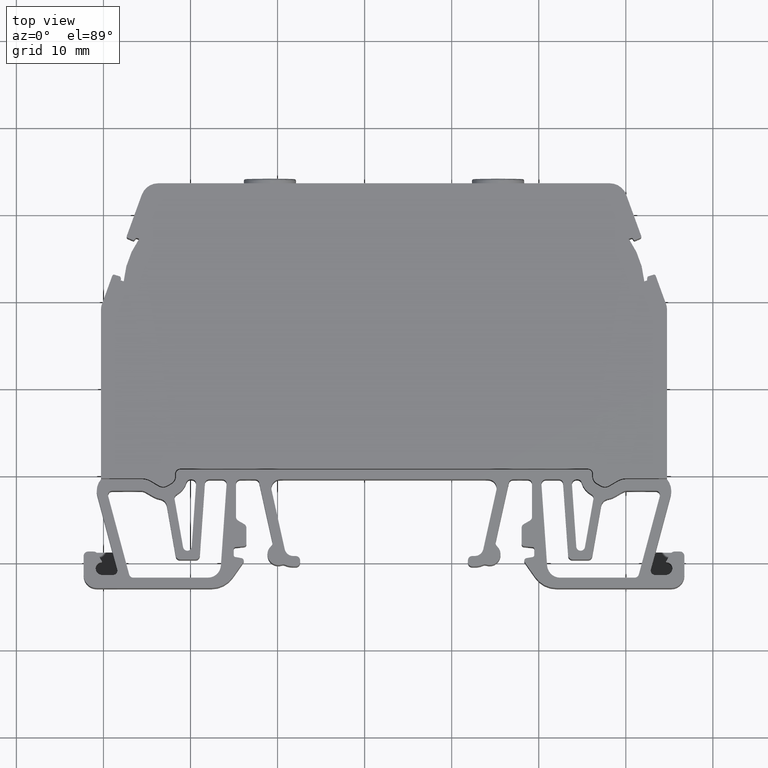
[diagram: clean part render]
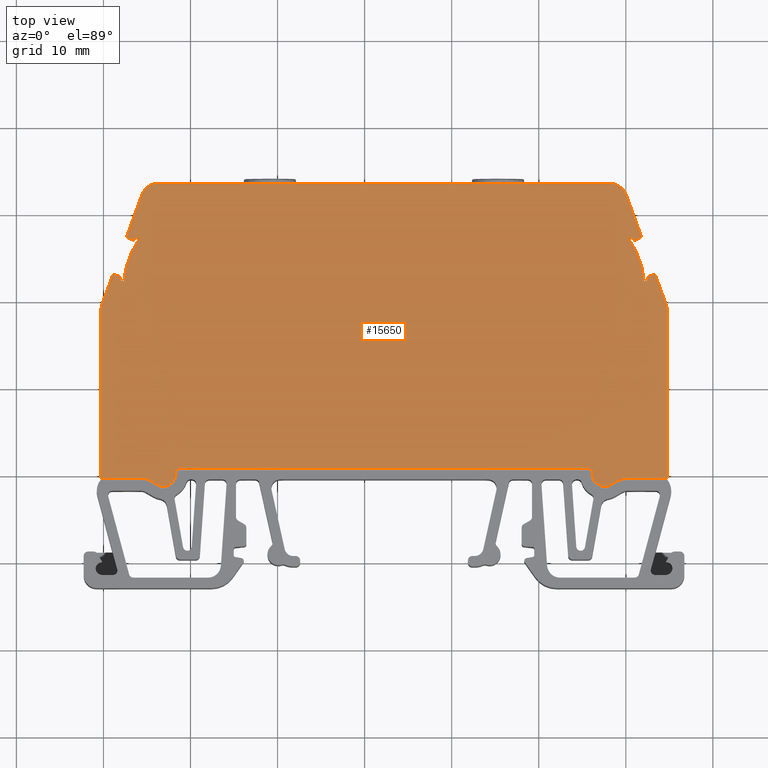
[diagram: same view with one face highlighted and labeled with its STEP entity id]
A machine part, top view. The second image highlights one B-rep face of the part: STEP entity #15650.
In plain terms, the highlighted planar face has unit normal (0, 0, 1).
Its self-contained STEP definition (entity closure, byte-faithful):
#19 = CARTESIAN_POINT ( 'NONE',  ( 503.4331740548898300, 132.9193360070189300, 35.94999999999999600 ) ) ;
#20 = CARTESIAN_POINT ( 'NONE',  ( 500.3413740903850500, 137.1677233500630000, 35.94999999999999600 ) ) ;
#27 = CARTESIAN_POINT ( 'NONE',  ( 443.8344203756755100, 137.2676784570948000, 35.94999999999999600 ) ) ;
#28 = CARTESIAN_POINT ( 'NONE',  ( 502.3985086091179300, 132.3702721546271700, 35.94999999999999600 ) ) ;
#42 = CARTESIAN_POINT ( 'NONE',  ( 500.0710872772070800, 109.6396937618602300, 35.94999999999999600 ) ) ;
#52 = CARTESIAN_POINT ( 'NONE',  ( 439.7252143684760300, 109.6396937019389200, 35.94999999999999600 ) ) ;
#70 = CARTESIAN_POINT ( 'NONE',  ( 442.8003196660605500, 137.2589568413611400, 35.94999999999999600 ) ) ;
#74 = CARTESIAN_POINT ( 'NONE',  ( 448.8254475470134800, 110.7485886008790000, 35.94999999999999600 ) ) ;
#75 = CARTESIAN_POINT ( 'NONE',  ( 500.6159984899119900, 137.2676784570948300, 35.94999999999999600 ) ) ;
#81 = CARTESIAN_POINT ( 'NONE',  ( 444.1090447752035900, 137.1677233500631400, 35.94999999999999600 ) ) ;
#86 = CARTESIAN_POINT ( 'NONE',  ( 504.7252093648909900, 129.1050819782660100, 35.94999999999999600 ) ) ;
#93 = CARTESIAN_POINT ( 'NONE',  ( 442.0519102564695100, 132.3702721546274300, 35.94999999999999600 ) ) ;
#106 = CARTESIAN_POINT ( 'NONE',  ( 504.7252093648909900, 109.6396936420171900, 35.94999999999999600 ) ) ;
#107 = CARTESIAN_POINT ( 'NONE',  ( 439.8156742988989500, 129.6181228246176400, 35.94999999999999600 ) ) ;
#108 = CARTESIAN_POINT ( 'NONE',  ( 441.2653375523544800, 133.0416697279764800, 35.94999999999999600 ) ) ;
#112 = CARTESIAN_POINT ( 'NONE',  ( 498.1671904468869900, 143.5396878145460000, 35.94999999999999600 ) ) ;
#118 = CARTESIAN_POINT ( 'NONE',  ( 442.3265345086064700, 132.2703171012420000, 35.94999999999999600 ) ) ;
#119 = CARTESIAN_POINT ( 'NONE',  ( 442.6889248981364600, 137.5121354201390600, 35.94999999999999600 ) ) ;
#121 = CARTESIAN_POINT ( 'NONE',  ( 502.1238843569819900, 132.2703171012420000, 35.94999999999999600 ) ) ;
#123 = CARTESIAN_POINT ( 'NONE',  ( 504.6347445666889900, 129.6181228246176100, 35.94999999999999600 ) ) ;
#135 = CARTESIAN_POINT ( 'NONE',  ( 439.7252095006967400, 129.1050819782660100, 35.94999999999999600 ) ) ;
#145 = CARTESIAN_POINT ( 'NONE',  ( 441.0172448106974900, 132.9193360070189800, 35.94999999999999600 ) ) ;
#165 = CARTESIAN_POINT ( 'NONE',  ( 500.0465707159510200, 142.2237417628949700, 35.94999999999999600 ) ) ;
#169 = CARTESIAN_POINT ( 'NONE',  ( 446.2832284187011300, 143.5396878145460600, 35.94999999999999600 ) ) ;
#190 = CARTESIAN_POINT ( 'NONE',  ( 501.7614939674509700, 137.5121354201390000, 35.94999999999999600 ) ) ;
#191 = CARTESIAN_POINT ( 'NONE',  ( 444.4038481496365300, 142.2237417628949700, 35.94999999999999600 ) ) ;
#777 = CARTESIAN_POINT ( 'NONE',  ( 498.0475476597341100, 108.7962708651284300, 35.94999999999999600 ) ) ;
#790 = DIRECTION ( 'NONE',  ( -0.8660242921353220600, -0.5000019254278069700, 0.0000000000000000000 ) ) ;
#798 = LINE ( 'NONE', #777, #1277 ) ;
#899 = CARTESIAN_POINT ( 'NONE',  ( 496.2249713185750000, 110.1485886008790100, 35.94999999999999600 ) ) ;
#904 = CARTESIAN_POINT ( 'NONE',  ( 498.0475476597335400, 108.7962708651281100, 35.94999999999999600 ) ) ;
#958 = CARTESIAN_POINT ( 'NONE',  ( 501.0879123199289900, 137.0260679826899900, 35.94999999999999600 ) ) ;
#962 = CARTESIAN_POINT ( 'NONE',  ( 443.6421634610584900, 137.1780275854749800, 35.94999999999999600 ) ) ;
#965 = CARTESIAN_POINT ( 'NONE',  ( 443.6296331466310200, 137.1436008295233900, 35.94999999999999600 ) ) ;
#988 = CARTESIAN_POINT ( 'NONE',  ( 500.8082554045290100, 137.1780275854750400, 35.94999999999999600 ) ) ;
#1006 = CARTESIAN_POINT ( 'NONE',  ( 502.4756495528112100, 132.5968998137400900, 35.94999999999999600 ) ) ;
#1029 = CARTESIAN_POINT ( 'NONE',  ( 441.8457076652765100, 132.8586343896417600, 35.94999999999999600 ) ) ;
#1031 = CARTESIAN_POINT ( 'NONE',  ( 502.6047112003120100, 132.8586343896420500, 35.94999999999999600 ) ) ;
#1033 = CARTESIAN_POINT ( 'NONE',  ( 444.3793315639185300, 109.6396937618606000, 35.94999999999999600 ) ) ;
#1050 = CARTESIAN_POINT ( 'NONE',  ( 441.9622593848505400, 132.5625290692439900, 35.94999999999999600 ) ) ;
#1057 = CARTESIAN_POINT ( 'NONE',  ( 499.0210836993427400, 109.3583450456087700, 35.94999999999999600 ) ) ;
#1065 = CARTESIAN_POINT ( 'NONE',  ( 495.6249713185750400, 110.7485886008790200, 35.94999999999999600 ) ) ;
#1066 = CARTESIAN_POINT ( 'NONE',  ( 443.3625065456589600, 137.0260679826899400, 35.94999999999999600 ) ) ;
#1072 = CARTESIAN_POINT ( 'NONE',  ( 503.1850813132330100, 133.0416697279760900, 35.94999999999999600 ) ) ;
#1277 = VECTOR ( 'NONE', #790, 1000.000000000000100 ) ;
#1334 = CIRCLE ( 'NONE', #1399, 0.5999999999999894300 ) ;
#1339 = CIRCLE ( 'NONE', #1361, 0.2020000000000354800 ) ;
#1361 = AXIS2_PLACEMENT_3D ( 'NONE', #9011, #8977, #8994 ) ;
#1369 = CIRCLE ( 'NONE', #1392, 0.2019999999998689500 ) ;
#1384 = VECTOR ( 'NONE', #9036, 1000.000000000000000 ) ;
#1390 = VECTOR ( 'NONE', #8976, 1000.000000000000000 ) ;
#1392 = AXIS2_PLACEMENT_3D ( 'NONE', #9136, #9124, #9106 ) ;
#1394 = CIRCLE ( 'NONE', #1439, 0.2020000000001465100 ) ;
#1399 = AXIS2_PLACEMENT_3D ( 'NONE', #9186, #9169, #9171 ) ;
#1400 = AXIS2_PLACEMENT_3D ( 'NONE', #9273, #9282, #9265 ) ;
#1401 = VECTOR ( 'NONE', #9309, 999.9999999999998900 ) ;
#1416 = CIRCLE ( 'NONE', #1400, 0.5999999999999894300 ) ;
#1417 = AXIS2_PLACEMENT_3D ( 'NONE', #9526, #9523, #9498 ) ;
#1432 = CIRCLE ( 'NONE', #1417, 2.100000000000656900 ) ;
#1439 = AXIS2_PLACEMENT_3D ( 'NONE', #9432, #9429, #9433 ) ;
#1456 = VECTOR ( 'NONE', #9329, 1000.000000000000100 ) ;
#1458 = AXIS2_PLACEMENT_3D ( 'NONE', #9703, #9734, #9702 ) ;
#1864 = AXIS2_PLACEMENT_3D ( 'NONE', #5214, #5195, #5188 ) ;
#1892 = CIRCLE ( 'NONE', #1864, 0.9000000000000674100 ) ;
#1895 = CIRCLE ( 'NONE', #1904, 0.9000000000001229200 ) ;
#1902 = VECTOR ( 'NONE', #5178, 1000.000000000000000 ) ;
#1904 = AXIS2_PLACEMENT_3D ( 'NONE', #5182, #5230, #5287 ) ;
#1981 = VECTOR ( 'NONE', #11873, 1000.000000000000100 ) ;
#1992 = CIRCLE ( 'NONE', #2045, 0.8999999035514960600 ) ;
#2038 = VECTOR ( 'NONE', #5826, 1000.000000000000100 ) ;
#2045 = AXIS2_PLACEMENT_3D ( 'NONE', #12231, #12210, #12207 ) ;
#2051 = CIRCLE ( 'NONE', #2068, 0.8999995820572204200 ) ;
#2068 = AXIS2_PLACEMENT_3D ( 'NONE', #12583, #12573, #12585 ) ;
#2140 = AXIS2_PLACEMENT_3D ( 'NONE', #12911, #12913, #12893 ) ;
#2153 = VECTOR ( 'NONE', #12725, 1000.000000000000000 ) ;
#2161 = VECTOR ( 'NONE', #12869, 1000.000000000000000 ) ;
#2168 = CIRCLE ( 'NONE', #2140, 0.2020000000002575300 ) ;
#2852 = EDGE_CURVE ( 'NONE', #6342, #6193, #11560, .T. ) ;
#2890 = EDGE_CURVE ( 'NONE', #6188, #6355, #11570, .T. ) ;
#2895 = EDGE_CURVE ( 'NONE', #4106, #6316, #11561, .T. ) ;
#2900 = EDGE_CURVE ( 'NONE', #6383, #6273, #11587, .T. ) ;
#2926 = EDGE_CURVE ( 'NONE', #6242, #6277, #14067, .T. ) ;
#2930 = EDGE_CURVE ( 'NONE', #6245, #6311, #14023, .T. ) ;
#2941 = EDGE_CURVE ( 'NONE', #6197, #6305, #11668, .T. ) ;
#2986 = EDGE_CURVE ( 'NONE', #6288, #6232, #14314, .T. ) ;
#2993 = EDGE_CURVE ( 'NONE', #6330, #6203, #14437, .T. ) ;
#3003 = EDGE_CURVE ( 'NONE', #6234, #6428, #14464, .T. ) ;
#3014 = EDGE_CURVE ( 'NONE', #6412, #6487, #11720, .T. ) ;
#3018 = EDGE_CURVE ( 'NONE', #6384, #6403, #14512, .T. ) ;
#3019 = EDGE_CURVE ( 'NONE', #6497, #6412, #14542, .T. ) ;
#3021 = EDGE_CURVE ( 'NONE', #6442, #6489, #14627, .T. ) ;
#3022 = EDGE_CURVE ( 'NONE', #6358, #6277, #11709, .T. ) ;
#3023 = EDGE_CURVE ( 'NONE', #6442, #6311, #11731, .T. ) ;
#3024 = EDGE_CURVE ( 'NONE', #6411, #6493, #14668, .T. ) ;
#3029 = EDGE_CURVE ( 'NONE', #6363, #6342, #14699, .T. ) ;
#3031 = EDGE_CURVE ( 'NONE', #6384, #6421, #11746, .T. ) ;
#3033 = EDGE_CURVE ( 'NONE', #6330, #6415, #14617, .T. ) ;
#3036 = EDGE_CURVE ( 'NONE', #6440, #6383, #15237, .T. ) ;
#3037 = EDGE_CURVE ( 'NONE', #6355, #6451, #15227, .T. ) ;
#3038 = EDGE_CURVE ( 'NONE', #6363, #6390, #11774, .T. ) ;
#3047 = EDGE_CURVE ( 'NONE', #6358, #6421, #15246, .T. ) ;
#3048 = EDGE_CURVE ( 'NONE', #6493, #6428, #11771, .T. ) ;
#3050 = EDGE_CURVE ( 'NONE', #4038, #6488, #11753, .T. ) ;
#3051 = EDGE_CURVE ( 'NONE', #6487, #6488, #15259, .T. ) ;
#3053 = EDGE_CURVE ( 'NONE', #6316, #6390, #13628, .T. ) ;
#3054 = EDGE_CURVE ( 'NONE', #6489, #6497, #11780, .T. ) ;
#3060 = EDGE_CURVE ( 'NONE', #6415, #6411, #11754, .T. ) ;
#3062 = EDGE_CURVE ( 'NONE', #6305, #6403, #13590, .T. ) ;
#3063 = EDGE_CURVE ( 'NONE', #6440, #6451, #11792, .T. ) ;
#3213 = EDGE_CURVE ( 'NONE', #4140, #4106, #11291, .T. ) ;
#3275 = EDGE_CURVE ( 'NONE', #4071, #4038, #11352, .T. ) ;
#3286 = EDGE_CURVE ( 'NONE', #4133, #4179, #11313, .T. ) ;
#3946 = EDGE_LOOP ( 'NONE', ( #7281, #7294, #7323, #7313, #7305, #7268, #7320, #7279, #7290, #7308, #7296, #7247, #7321, #7276, #7264, #7315, #7322, #7263, #7299, #7270, #7304, #7271, #7325, #7292, #7301, #7317, #7311, #7253, #7324, #7326, #7249, #7316, #7278, #7250, #7300, #7310, #7319, #7291, #7330, #7342, #7343, #7361, #7389, #7273, #7345, #7375, #7384, #7371, #7334, #7369, #7351, #7282, #7365, #7387, #7336, #7269, #7357 ) ) ;
#4010 = VERTEX_POINT ( 'NONE', #10664 ) ;
#4038 = VERTEX_POINT ( 'NONE', #10661 ) ;
#4071 = VERTEX_POINT ( 'NONE', #10776 ) ;
#4106 = VERTEX_POINT ( 'NONE', #10762 ) ;
#4133 = VERTEX_POINT ( 'NONE', #10814 ) ;
#4140 = VERTEX_POINT ( 'NONE', #10792 ) ;
#4179 = VERTEX_POINT ( 'NONE', #10898 ) ;
#4229 = VERTEX_POINT ( 'NONE', #10902 ) ;
#4264 = VERTEX_POINT ( 'NONE', #10930 ) ;
#4329 = VERTEX_POINT ( 'NONE', #11040 ) ;
#4336 = VERTEX_POINT ( 'NONE', #11023 ) ;
#4341 = VERTEX_POINT ( 'NONE', #11039 ) ;
#4377 = VERTEX_POINT ( 'NONE', #11083 ) ;
#4407 = VERTEX_POINT ( 'NONE', #11098 ) ;
#4412 = VERTEX_POINT ( 'NONE', #11047 ) ;
#4413 = VERTEX_POINT ( 'NONE', #11090 ) ;
#4461 = VERTEX_POINT ( 'NONE', #899 ) ;
#4496 = VERTEX_POINT ( 'NONE', #904 ) ;
#4519 = VERTEX_POINT ( 'NONE', #1006 ) ;
#4521 = VERTEX_POINT ( 'NONE', #958 ) ;
#5178 = DIRECTION ( 'NONE',  ( -0.8660257572831008300, 0.4999993877218569800, 0.0000000000000000000 ) ) ;
#5180 = CARTESIAN_POINT ( 'NONE',  ( 496.6749713185751000, 109.0691067570462000, 35.94999999999999600 ) ) ;
#5182 = CARTESIAN_POINT ( 'NONE',  ( 447.3254475470129700, 109.8485296204524000, 35.94999999999999600 ) ) ;
#5188 = DIRECTION ( 'NONE',  ( 1.000000000000000000, 0.0000000000000000000, 0.0000000000000000000 ) ) ;
#5195 = DIRECTION ( 'NONE',  ( -0.0000000000000000000, -0.0000000000000000000, -1.000000000000000000 ) ) ;
#5206 = LINE ( 'NONE', #5180, #1902 ) ;
#5214 = CARTESIAN_POINT ( 'NONE',  ( 497.1249713185750400, 109.8485296204524000, 35.94999999999999600 ) ) ;
#5230 = DIRECTION ( 'NONE',  ( -0.0000000000000000000, -0.0000000000000000000, -1.000000000000000000 ) ) ;
#5287 = DIRECTION ( 'NONE',  ( 1.000000000000000000, 0.0000000000000000000, 0.0000000000000000000 ) ) ;
#5774 = VECTOR ( 'NONE', #5905, 1000.000000000000000 ) ;
#5818 = CARTESIAN_POINT ( 'NONE',  ( 502.4756495528109800, 132.5968998137400100, 35.94999999999999600 ) ) ;
#5826 = DIRECTION ( 'NONE',  ( -0.3420201433202184600, 0.9396926207878920600, 0.0000000000000000000 ) ) ;
#5841 = LINE ( 'NONE', #5818, #2038 ) ;
#5905 = DIRECTION ( 'NONE',  ( -0.8660241491388746000, 0.5000021731035658700, 0.0000000000000000000 ) ) ;
#5914 = LINE ( 'NONE', #5923, #5774 ) ;
#5923 = CARTESIAN_POINT ( 'NONE',  ( 445.4293347377645200, 109.3583452929940000, 35.94999999999999600 ) ) ;
#6188 = VERTEX_POINT ( 'NONE', #962 ) ;
#6191 = VERTEX_POINT ( 'NONE', #965 ) ;
#6193 = VERTEX_POINT ( 'NONE', #988 ) ;
#6197 = VERTEX_POINT ( 'NONE', #1057 ) ;
#6203 = VERTEX_POINT ( 'NONE', #1033 ) ;
#6232 = VERTEX_POINT ( 'NONE', #1065 ) ;
#6234 = VERTEX_POINT ( 'NONE', #1029 ) ;
#6242 = VERTEX_POINT ( 'NONE', #1031 ) ;
#6245 = VERTEX_POINT ( 'NONE', #1066 ) ;
#6273 = VERTEX_POINT ( 'NONE', #1050 ) ;
#6277 = VERTEX_POINT ( 'NONE', #1072 ) ;
#6288 = VERTEX_POINT ( 'NONE', #74 ) ;
#6305 = VERTEX_POINT ( 'NONE', #42 ) ;
#6311 = VERTEX_POINT ( 'NONE', #70 ) ;
#6316 = VERTEX_POINT ( 'NONE', #28 ) ;
#6330 = VERTEX_POINT ( 'NONE', #52 ) ;
#6342 = VERTEX_POINT ( 'NONE', #75 ) ;
#6355 = VERTEX_POINT ( 'NONE', #27 ) ;
#6358 = VERTEX_POINT ( 'NONE', #19 ) ;
#6363 = VERTEX_POINT ( 'NONE', #20 ) ;
#6383 = VERTEX_POINT ( 'NONE', #93 ) ;
#6384 = VERTEX_POINT ( 'NONE', #86 ) ;
#6390 = VERTEX_POINT ( 'NONE', #121 ) ;
#6403 = VERTEX_POINT ( 'NONE', #106 ) ;
#6411 = VERTEX_POINT ( 'NONE', #107 ) ;
#6412 = VERTEX_POINT ( 'NONE', #112 ) ;
#6415 = VERTEX_POINT ( 'NONE', #135 ) ;
#6421 = VERTEX_POINT ( 'NONE', #123 ) ;
#6428 = VERTEX_POINT ( 'NONE', #108 ) ;
#6440 = VERTEX_POINT ( 'NONE', #118 ) ;
#6442 = VERTEX_POINT ( 'NONE', #119 ) ;
#6451 = VERTEX_POINT ( 'NONE', #81 ) ;
#6487 = VERTEX_POINT ( 'NONE', #165 ) ;
#6488 = VERTEX_POINT ( 'NONE', #190 ) ;
#6489 = VERTEX_POINT ( 'NONE', #191 ) ;
#6493 = VERTEX_POINT ( 'NONE', #145 ) ;
#6497 = VERTEX_POINT ( 'NONE', #169 ) ;
#7247 = ORIENTED_EDGE ( 'NONE', *, *, #3213, .T. ) ;
#7249 = ORIENTED_EDGE ( 'NONE', *, *, #15558, .F. ) ;
#7250 = ORIENTED_EDGE ( 'NONE', *, *, #3063, .F. ) ;
#7253 = ORIENTED_EDGE ( 'NONE', *, *, #3023, .T. ) ;
#7263 = ORIENTED_EDGE ( 'NONE', *, *, #15493, .F. ) ;
#7264 = ORIENTED_EDGE ( 'NONE', *, *, #3038, .F. ) ;
#7268 = ORIENTED_EDGE ( 'NONE', *, *, #3031, .T. ) ;
#7269 = ORIENTED_EDGE ( 'NONE', *, *, #16090, .F. ) ;
#7270 = ORIENTED_EDGE ( 'NONE', *, *, #15501, .F. ) ;
#7271 = ORIENTED_EDGE ( 'NONE', *, *, #3050, .T. ) ;
#7273 = ORIENTED_EDGE ( 'NONE', *, *, #3033, .F. ) ;
#7276 = ORIENTED_EDGE ( 'NONE', *, *, #3053, .T. ) ;
#7278 = ORIENTED_EDGE ( 'NONE', *, *, #3037, .T. ) ;
#7279 = ORIENTED_EDGE ( 'NONE', *, *, #3022, .T. ) ;
#7281 = ORIENTED_EDGE ( 'NONE', *, *, #16287, .F. ) ;
#7282 = ORIENTED_EDGE ( 'NONE', *, *, #15542, .T. ) ;
#7290 = ORIENTED_EDGE ( 'NONE', *, *, #2926, .F. ) ;
#7291 = ORIENTED_EDGE ( 'NONE', *, *, #3286, .F. ) ;
#7292 = ORIENTED_EDGE ( 'NONE', *, *, #3014, .F. ) ;
#7294 = ORIENTED_EDGE ( 'NONE', *, *, #15426, .F. ) ;
#7296 = ORIENTED_EDGE ( 'NONE', *, *, #16392, .F. ) ;
#7299 = ORIENTED_EDGE ( 'NONE', *, *, #16359, .F. ) ;
#7300 = ORIENTED_EDGE ( 'NONE', *, *, #3036, .T. ) ;
#7301 = ORIENTED_EDGE ( 'NONE', *, *, #3019, .F. ) ;
#7304 = ORIENTED_EDGE ( 'NONE', *, *, #3275, .T. ) ;
#7305 = ORIENTED_EDGE ( 'NONE', *, *, #3018, .F. ) ;
#7308 = ORIENTED_EDGE ( 'NONE', *, *, #15483, .F. ) ;
#7310 = ORIENTED_EDGE ( 'NONE', *, *, #2900, .T. ) ;
#7311 = ORIENTED_EDGE ( 'NONE', *, *, #3021, .F. ) ;
#7313 = ORIENTED_EDGE ( 'NONE', *, *, #3062, .T. ) ;
#7315 = ORIENTED_EDGE ( 'NONE', *, *, #3029, .T. ) ;
#7316 = ORIENTED_EDGE ( 'NONE', *, *, #2890, .T. ) ;
#7317 = ORIENTED_EDGE ( 'NONE', *, *, #3054, .F. ) ;
#7319 = ORIENTED_EDGE ( 'NONE', *, *, #15565, .F. ) ;
#7320 = ORIENTED_EDGE ( 'NONE', *, *, #3047, .F. ) ;
#7321 = ORIENTED_EDGE ( 'NONE', *, *, #2895, .T. ) ;
#7322 = ORIENTED_EDGE ( 'NONE', *, *, #2852, .T. ) ;
#7323 = ORIENTED_EDGE ( 'NONE', *, *, #2941, .T. ) ;
#7324 = ORIENTED_EDGE ( 'NONE', *, *, #2930, .F. ) ;
#7325 = ORIENTED_EDGE ( 'NONE', *, *, #3051, .F. ) ;
#7326 = ORIENTED_EDGE ( 'NONE', *, *, #15597, .F. ) ;
#7330 = ORIENTED_EDGE ( 'NONE', *, *, #15533, .F. ) ;
#7334 = ORIENTED_EDGE ( 'NONE', *, *, #16113, .F. ) ;
#7336 = ORIENTED_EDGE ( 'NONE', *, *, #16342, .F. ) ;
#7342 = ORIENTED_EDGE ( 'NONE', *, *, #3003, .T. ) ;
#7343 = ORIENTED_EDGE ( 'NONE', *, *, #3048, .F. ) ;
#7345 = ORIENTED_EDGE ( 'NONE', *, *, #2993, .T. ) ;
#7351 = ORIENTED_EDGE ( 'NONE', *, *, #16328, .F. ) ;
#7357 = ORIENTED_EDGE ( 'NONE', *, *, #16099, .F. ) ;
#7361 = ORIENTED_EDGE ( 'NONE', *, *, #3024, .F. ) ;
#7365 = ORIENTED_EDGE ( 'NONE', *, *, #2986, .T. ) ;
#7369 = ORIENTED_EDGE ( 'NONE', *, *, #16101, .F. ) ;
#7371 = ORIENTED_EDGE ( 'NONE', *, *, #16198, .F. ) ;
#7375 = ORIENTED_EDGE ( 'NONE', *, *, #15601, .T. ) ;
#7384 = ORIENTED_EDGE ( 'NONE', *, *, #16411, .F. ) ;
#7387 = ORIENTED_EDGE ( 'NONE', *, *, #15555, .T. ) ;
#7389 = ORIENTED_EDGE ( 'NONE', *, *, #3060, .F. ) ;
#8969 = LINE ( 'NONE', #8972, #1390 ) ;
#8972 = CARTESIAN_POINT ( 'NONE',  ( 500.8082554045290100, 137.1780275854749800, 35.94999999999999600 ) ) ;
#8976 = DIRECTION ( 'NONE',  ( -0.3420201433108998600, 0.9396926207912837900, 0.0000000000000000000 ) ) ;
#8977 = DIRECTION ( 'NONE',  ( -0.0000000000000000000, -0.0000000000000000000, -1.000000000000000000 ) ) ;
#8994 = DIRECTION ( 'NONE',  ( 1.000000000000000000, 1.374038396813071300E-013, 0.0000000000000000000 ) ) ;
#9011 = CARTESIAN_POINT ( 'NONE',  ( 502.6654674622100700, 132.6659878826916100, 35.94999999999999600 ) ) ;
#9024 = CARTESIAN_POINT ( 'NONE',  ( 501.0879123199289900, 137.0260679826899900, 35.94999999999999600 ) ) ;
#9036 = DIRECTION ( 'NONE',  ( -0.9238659197143411800, -0.3827162949109620400, 0.0000000000000000000 ) ) ;
#9049 = LINE ( 'NONE', #9024, #1384 ) ;
#9106 = DIRECTION ( 'NONE',  ( 1.000000000000000000, -6.870191984071019500E-013, 0.0000000000000000000 ) ) ;
#9124 = DIRECTION ( 'NONE',  ( -0.0000000000000000000, -0.0000000000000000000, -1.000000000000000000 ) ) ;
#9136 = CARTESIAN_POINT ( 'NONE',  ( 441.7849514033779900, 132.6659878826916100, 35.94999999999999600 ) ) ;
#9169 = DIRECTION ( 'NONE',  ( -0.0000000000000000000, -0.0000000000000000000, -1.000000000000000000 ) ) ;
#9171 = DIRECTION ( 'NONE',  ( 1.000000000000000000, 0.0000000000000000000, 0.0000000000000000000 ) ) ;
#9186 = CARTESIAN_POINT ( 'NONE',  ( 448.8254475470129700, 110.1485886008790100, 35.94999999999999600 ) ) ;
#9265 = DIRECTION ( 'NONE',  ( 1.000000000000000000, 0.0000000000000000000, 0.0000000000000000000 ) ) ;
#9273 = CARTESIAN_POINT ( 'NONE',  ( 495.6249713185750400, 110.1485886008790100, 35.94999999999999600 ) ) ;
#9278 = LINE ( 'NONE', #9281, #1401 ) ;
#9281 = CARTESIAN_POINT ( 'NONE',  ( 443.6296331466310200, 137.1436008295233900, 35.94999999999999600 ) ) ;
#9282 = DIRECTION ( 'NONE',  ( -0.0000000000000000000, -0.0000000000000000000, -1.000000000000000000 ) ) ;
#9301 = LINE ( 'NONE', #9321, #1456 ) ;
#9309 = DIRECTION ( 'NONE',  ( -0.3420201433023855600, -0.9396926207943828700, 0.0000000000000000000 ) ) ;
#9321 = CARTESIAN_POINT ( 'NONE',  ( 441.9622593848504800, 132.5625290692440200, 35.94999999999999600 ) ) ;
#9329 = DIRECTION ( 'NONE',  ( -0.3420201433215586100, -0.9396926207874043400, 0.0000000000000000000 ) ) ;
#9429 = DIRECTION ( 'NONE',  ( -0.0000000000000000000, -0.0000000000000000000, -1.000000000000000000 ) ) ;
#9432 = CARTESIAN_POINT ( 'NONE',  ( 443.4398152372310200, 137.2126888984726100, 35.94999999999999600 ) ) ;
#9433 = DIRECTION ( 'NONE',  ( 1.000000000000000000, 0.0000000000000000000, 0.0000000000000000000 ) ) ;
#9498 = DIRECTION ( 'NONE',  ( 1.000000000000000000, 0.0000000000000000000, 0.0000000000000000000 ) ) ;
#9523 = DIRECTION ( 'NONE',  ( -0.0000000000000000000, -0.0000000000000000000, -1.000000000000000000 ) ) ;
#9526 = CARTESIAN_POINT ( 'NONE',  ( 444.3793315909559900, 107.5396937618599900, 35.94999999999999600 ) ) ;
#9689 = PLANE ( 'NONE',  #1458 ) ;
#9702 = DIRECTION ( 'NONE',  ( 1.000000000000000000, 0.0000000000000000000, -0.0000000000000000000 ) ) ;
#9703 = CARTESIAN_POINT ( 'NONE',  ( 441.2252095006970200, 129.1050823633559900, 35.95000000000000300 ) ) ;
#9717 = FACE_OUTER_BOUND ( 'NONE', #3946, .T. ) ;
#9734 = DIRECTION ( 'NONE',  ( 0.0000000000000000000, 0.0000000000000000000, 1.000000000000000000 ) ) ;
#10661 = CARTESIAN_POINT ( 'NONE',  ( 501.7735559405449500, 137.4437300253040600, 35.94999999999999600 ) ) ;
#10664 = CARTESIAN_POINT ( 'NONE',  ( 445.4293347377644600, 109.3583452929937200, 35.94999999999999600 ) ) ;
#10762 = CARTESIAN_POINT ( 'NONE',  ( 502.4972055876190200, 132.5112260477452000, 35.94999999999999600 ) ) ;
#10776 = CARTESIAN_POINT ( 'NONE',  ( 501.6500991995269500, 137.2589568413611100, 35.94999999999999600 ) ) ;
#10792 = CARTESIAN_POINT ( 'NONE',  ( 502.4881594807369000, 132.5625290692440200, 35.94999999999999600 ) ) ;
#10814 = CARTESIAN_POINT ( 'NONE',  ( 441.9869514033778700, 132.6659878826916100, 35.94999999999999600 ) ) ;
#10898 = CARTESIAN_POINT ( 'NONE',  ( 441.9747693127764600, 132.5968998137400400, 35.94999999999999600 ) ) ;
#10902 = CARTESIAN_POINT ( 'NONE',  ( 447.3028760646330400, 108.7962675958520300, 35.94999999999999600 ) ) ;
#10930 = CARTESIAN_POINT ( 'NONE',  ( 496.6749713185751000, 109.0691067570462600, 35.94999999999999600 ) ) ;
#11023 = CARTESIAN_POINT ( 'NONE',  ( 446.4028713894810500, 108.7962703878793600, 35.94999999999999600 ) ) ;
#11039 = CARTESIAN_POINT ( 'NONE',  ( 447.7754475470129600, 109.0691067570462600, 35.94999999999999600 ) ) ;
#11040 = CARTESIAN_POINT ( 'NONE',  ( 497.1475429617026400, 108.7962678742739200, 35.94999999999999600 ) ) ;
#11047 = CARTESIAN_POINT ( 'NONE',  ( 500.8207857189570400, 137.1436008295235900, 35.94999999999999600 ) ) ;
#11083 = CARTESIAN_POINT ( 'NONE',  ( 448.2254475470130000, 109.8485296204524000, 35.94999999999999600 ) ) ;
#11090 = CARTESIAN_POINT ( 'NONE',  ( 448.2254475470130000, 110.1485886008789500, 35.94999999999999600 ) ) ;
#11098 = CARTESIAN_POINT ( 'NONE',  ( 496.2249713185750000, 109.8485296204524000, 35.94999999999999600 ) ) ;
#11291 = CIRCLE ( 'NONE', #11292, 0.1500000000000945000 ) ;
#11292 = AXIS2_PLACEMENT_3D ( 'NONE', #14217, #14186, #14183 ) ;
#11313 = CIRCLE ( 'NONE', #11346, 0.2019999999998689500 ) ;
#11315 = AXIS2_PLACEMENT_3D ( 'NONE', #14420, #14388, #14372 ) ;
#11346 = AXIS2_PLACEMENT_3D ( 'NONE', #14506, #14494, #14439 ) ;
#11352 = CIRCLE ( 'NONE', #11315, 0.1999999999999779700 ) ;
#11560 = CIRCLE ( 'NONE', #11613, 0.1499999999997614400 ) ;
#11561 = CIRCLE ( 'NONE', #11592, 0.1500000000000945000 ) ;
#11570 = CIRCLE ( 'NONE', #11573, 0.1499999999997614400 ) ;
#11573 = AXIS2_PLACEMENT_3D ( 'NONE', #13913, #13909, #13975 ) ;
#11587 = CIRCLE ( 'NONE', #11589, 0.1499999999999834800 ) ;
#11589 = AXIS2_PLACEMENT_3D ( 'NONE', #13977, #13968, #13895 ) ;
#11592 = AXIS2_PLACEMENT_3D ( 'NONE', #13924, #13962, #13936 ) ;
#11613 = AXIS2_PLACEMENT_3D ( 'NONE', #13869, #13841, #13826 ) ;
#11634 = VECTOR ( 'NONE', #14021, 1000.000000000000100 ) ;
#11644 = AXIS2_PLACEMENT_3D ( 'NONE', #14078, #14132, #14113 ) ;
#11648 = VECTOR ( 'NONE', #13979, 1000.000000000000100 ) ;
#11668 = CIRCLE ( 'NONE', #11644, 2.100000000000323800 ) ;
#11686 = VECTOR ( 'NONE', #14366, 1000.000000000000000 ) ;
#11691 = AXIS2_PLACEMENT_3D ( 'NONE', #14642, #14631, #14619 ) ;
#11692 = AXIS2_PLACEMENT_3D ( 'NONE', #14657, #14638, #14674 ) ;
#11696 = VECTOR ( 'NONE', #14579, 1000.000000000000000 ) ;
#11698 = VECTOR ( 'NONE', #14687, 999.9999999999998900 ) ;
#11699 = VECTOR ( 'NONE', #14487, 1000.000000000000100 ) ;
#11702 = AXIS2_PLACEMENT_3D ( 'NONE', #14573, #14595, #14539 ) ;
#11709 = CIRCLE ( 'NONE', #11691, 0.1999999999997559300 ) ;
#11715 = VECTOR ( 'NONE', #14449, 1000.000000000000100 ) ;
#11720 = CIRCLE ( 'NONE', #11702, 1.999999999999724200 ) ;
#11721 = VECTOR ( 'NONE', #14566, 1000.000000000000000 ) ;
#11731 = CIRCLE ( 'NONE', #11692, 0.2000000000001445100 ) ;
#11737 = VECTOR ( 'NONE', #14635, 1000.000000000000100 ) ;
#11744 = VECTOR ( 'NONE', #14682, 1000.000000000000000 ) ;
#11745 = VECTOR ( 'NONE', #14648, 1000.000000000000000 ) ;
#11746 = CIRCLE ( 'NONE', #11748, 1.499999999999945800 ) ;
#11748 = AXIS2_PLACEMENT_3D ( 'NONE', #14599, #14603, #14670 ) ;
#11751 = AXIS2_PLACEMENT_3D ( 'NONE', #13607, #13615, #13553 ) ;
#11753 = CIRCLE ( 'NONE', #11779, 0.1999999999999779700 ) ;
#11754 = CIRCLE ( 'NONE', #11785, 1.499999999999890300 ) ;
#11756 = VECTOR ( 'NONE', #15221, 1000.000000000000000 ) ;
#11757 = AXIS2_PLACEMENT_3D ( 'NONE', #15222, #15220, #15223 ) ;
#11760 = VECTOR ( 'NONE', #13616, 1000.000000000000000 ) ;
#11761 = AXIS2_PLACEMENT_3D ( 'NONE', #13610, #13585, #13574 ) ;
#11763 = VECTOR ( 'NONE', #15236, 1000.000000000000100 ) ;
#11771 = CIRCLE ( 'NONE', #11751, 0.1999999999999779700 ) ;
#11774 = CIRCLE ( 'NONE', #11757, 10.00000000000045300 ) ;
#11776 = VECTOR ( 'NONE', #15251, 999.9999999999998900 ) ;
#11777 = VECTOR ( 'NONE', #13634, 1000.000000000000100 ) ;
#11779 = AXIS2_PLACEMENT_3D ( 'NONE', #13624, #13602, #13631 ) ;
#11780 = CIRCLE ( 'NONE', #11761, 2.000000000000057300 ) ;
#11785 = AXIS2_PLACEMENT_3D ( 'NONE', #13559, #13566, #13570 ) ;
#11792 = CIRCLE ( 'NONE', #11798, 10.00000000000000900 ) ;
#11797 = VECTOR ( 'NONE', #13620, 1000.000000000000100 ) ;
#11798 = AXIS2_PLACEMENT_3D ( 'NONE', #13685, #13639, #13682 ) ;
#11873 = DIRECTION ( 'NONE',  ( -0.8660254627010567400, -0.4999998979534099300, 0.0000000000000000000 ) ) ;
#11875 = CARTESIAN_POINT ( 'NONE',  ( 447.3028760807075100, 108.7962675680096000, 35.94999999999999600 ) ) ;
#11894 = LINE ( 'NONE', #11875, #1981 ) ;
#12207 = DIRECTION ( 'NONE',  ( 1.000000000000000000, 1.541976588336423000E-014, 0.0000000000000000000 ) ) ;
#12210 = DIRECTION ( 'NONE',  ( -0.0000000000000000000, -0.0000000000000000000, -1.000000000000000000 ) ) ;
#12231 = CARTESIAN_POINT ( 'NONE',  ( 446.8528761128570200, 109.5756903757310000, 35.94999999999999600 ) ) ;
#12573 = DIRECTION ( 'NONE',  ( -0.0000000000000000000, -0.0000000000000000000, -1.000000000000000000 ) ) ;
#12583 = CARTESIAN_POINT ( 'NONE',  ( 497.5975427527309900, 109.5756903757310000, 35.94999999999999600 ) ) ;
#12585 = DIRECTION ( 'NONE',  ( 1.000000000000000000, -4.625931417465524400E-014, 0.0000000000000000000 ) ) ;
#12718 = CARTESIAN_POINT ( 'NONE',  ( 448.2254475470130000, 109.8485296204524000, 35.94999999999999600 ) ) ;
#12725 = DIRECTION ( 'NONE',  ( 1.850007993506319900E-013, -1.000000000000000000, 0.0000000000000000000 ) ) ;
#12738 = LINE ( 'NONE', #12718, #2153 ) ;
#12852 = LINE ( 'NONE', #12860, #2161 ) ;
#12860 = CARTESIAN_POINT ( 'NONE',  ( 496.2249713185750000, 110.1485886008790100, 35.94999999999999600 ) ) ;
#12869 = DIRECTION ( 'NONE',  ( 0.0000000000000000000, 1.000000000000000000, 0.0000000000000000000 ) ) ;
#12893 = DIRECTION ( 'NONE',  ( 1.000000000000000000, 1.374038396811560700E-013, 0.0000000000000000000 ) ) ;
#12911 = CARTESIAN_POINT ( 'NONE',  ( 501.0106036283570500, 137.2126888984726100, 35.94999999999999600 ) ) ;
#12913 = DIRECTION ( 'NONE',  ( -0.0000000000000000000, -0.0000000000000000000, -1.000000000000000000 ) ) ;
#13549 = CARTESIAN_POINT ( 'NONE',  ( 441.2252089994660200, 109.6396952771334100, 35.95000000000000300 ) ) ;
#13553 = DIRECTION ( 'NONE',  ( 1.000000000000000000, -1.387778780781598400E-013, 0.0000000000000000000 ) ) ;
#13559 = CARTESIAN_POINT ( 'NONE',  ( 441.2252095006970200, 129.1050823633559900, 35.94999999999999600 ) ) ;
#13566 = DIRECTION ( 'NONE',  ( -0.0000000000000000000, -0.0000000000000000000, -1.000000000000000000 ) ) ;
#13570 = DIRECTION ( 'NONE',  ( 1.000000000000000000, 1.110223024625237700E-013, 0.0000000000000000000 ) ) ;
#13574 = DIRECTION ( 'NONE',  ( 1.000000000000000000, 0.0000000000000000000, 0.0000000000000000000 ) ) ;
#13585 = DIRECTION ( 'NONE',  ( -0.0000000000000000000, -0.0000000000000000000, -1.000000000000000000 ) ) ;
#13590 = LINE ( 'NONE', #13549, #11797 ) ;
#13602 = DIRECTION ( 'NONE',  ( 0.0000000000000000000, 0.0000000000000000000, 1.000000000000000000 ) ) ;
#13607 = CARTESIAN_POINT ( 'NONE',  ( 441.2051828376039600, 132.8509306121840700, 35.94999999999999600 ) ) ;
#13610 = CARTESIAN_POINT ( 'NONE',  ( 446.2832284187011300, 141.5396878145460000, 35.94999999999999600 ) ) ;
#13615 = DIRECTION ( 'NONE',  ( -0.0000000000000000000, -0.0000000000000000000, -1.000000000000000000 ) ) ;
#13616 = DIRECTION ( 'NONE',  ( 0.3420269741745725100, -0.9396901345321160300, 0.0000000000000000000 ) ) ;
#13620 = DIRECTION ( 'NONE',  ( 0.9999999999999996700, -2.574986095760674600E-008, 0.0000000000000000000 ) ) ;
#13624 = CARTESIAN_POINT ( 'NONE',  ( 501.5735559405449600, 137.4437300253040600, 35.94999999999999600 ) ) ;
#13628 = LINE ( 'NONE', #13629, #11777 ) ;
#13629 = CARTESIAN_POINT ( 'NONE',  ( 447.3317143597481600, 112.3275981513560400, 35.95000000000000300 ) ) ;
#13631 = DIRECTION ( 'NONE',  ( 1.000000000000000000, 0.0000000000000000000, 0.0000000000000000000 ) ) ;
#13634 = DIRECTION ( 'NONE',  ( -0.9396926207856930400, -0.3420201433262601800, 0.0000000000000000000 ) ) ;
#13639 = DIRECTION ( 'NONE',  ( -0.0000000000000000000, -0.0000000000000000000, -1.000000000000000000 ) ) ;
#13682 = DIRECTION ( 'NONE',  ( 1.000000000000000000, 0.0000000000000000000, 0.0000000000000000000 ) ) ;
#13685 = CARTESIAN_POINT ( 'NONE',  ( 452.2900591060430300, 131.4169838742566000, 35.94999999999999600 ) ) ;
#13826 = DIRECTION ( 'NONE',  ( 1.000000000000000000, -5.551115123134610900E-013, 0.0000000000000000000 ) ) ;
#13841 = DIRECTION ( 'NONE',  ( -0.0000000000000000000, -0.0000000000000000000, -1.000000000000000000 ) ) ;
#13869 = CARTESIAN_POINT ( 'NONE',  ( 500.6673015114110400, 137.1267245639772100, 35.94999999999999600 ) ) ;
#13895 = DIRECTION ( 'NONE',  ( 1.000000000000000000, -3.700743415417596100E-013, 0.0000000000000000000 ) ) ;
#13909 = DIRECTION ( 'NONE',  ( -0.0000000000000000000, -0.0000000000000000000, -1.000000000000000000 ) ) ;
#13913 = CARTESIAN_POINT ( 'NONE',  ( 443.7831173541765100, 137.1267245639772100, 35.94999999999999600 ) ) ;
#13924 = CARTESIAN_POINT ( 'NONE',  ( 502.3472055876189300, 132.5112260477452000, 35.94999999999999600 ) ) ;
#13936 = DIRECTION ( 'NONE',  ( 1.000000000000000000, 0.0000000000000000000, 0.0000000000000000000 ) ) ;
#13962 = DIRECTION ( 'NONE',  ( -0.0000000000000000000, -0.0000000000000000000, -1.000000000000000000 ) ) ;
#13968 = DIRECTION ( 'NONE',  ( -0.0000000000000000000, -0.0000000000000000000, -1.000000000000000000 ) ) ;
#13975 = DIRECTION ( 'NONE',  ( 1.000000000000000000, -1.850371707711537200E-013, 0.0000000000000000000 ) ) ;
#13977 = CARTESIAN_POINT ( 'NONE',  ( 442.1032132779684500, 132.5112260477452000, 35.94999999999999600 ) ) ;
#13979 = DIRECTION ( 'NONE',  ( -0.9238659197144130100, 0.3827162949107885100, 0.0000000000000000000 ) ) ;
#14021 = DIRECTION ( 'NONE',  ( 0.9536955789618815100, 0.3007735737536818000, 0.0000000000000000000 ) ) ;
#14023 = LINE ( 'NONE', #14039, #11648 ) ;
#14039 = CARTESIAN_POINT ( 'NONE',  ( 442.8003196660604900, 137.2589568413610000, 35.94999999999999600 ) ) ;
#14056 = CARTESIAN_POINT ( 'NONE',  ( 503.1850813132330100, 133.0416697279762000, 35.94999999999999600 ) ) ;
#14067 = LINE ( 'NONE', #14056, #11634 ) ;
#14078 = CARTESIAN_POINT ( 'NONE',  ( 500.0710872746320200, 107.5396937618599900, 35.94999999999999600 ) ) ;
#14113 = DIRECTION ( 'NONE',  ( 1.000000000000000000, 0.0000000000000000000, 0.0000000000000000000 ) ) ;
#14132 = DIRECTION ( 'NONE',  ( -0.0000000000000000000, -0.0000000000000000000, -1.000000000000000000 ) ) ;
#14183 = DIRECTION ( 'NONE',  ( 1.000000000000000000, 0.0000000000000000000, 0.0000000000000000000 ) ) ;
#14186 = DIRECTION ( 'NONE',  ( -0.0000000000000000000, -0.0000000000000000000, -1.000000000000000000 ) ) ;
#14217 = CARTESIAN_POINT ( 'NONE',  ( 502.3472055876189300, 132.5112260477452000, 35.94999999999999600 ) ) ;
#14314 = LINE ( 'NONE', #14364, #11686 ) ;
#14364 = CARTESIAN_POINT ( 'NONE',  ( 441.2252095006970200, 110.7485886008790000, 35.95000000000000300 ) ) ;
#14366 = DIRECTION ( 'NONE',  ( 1.000000000000000000, 2.965369450243745100E-016, 0.0000000000000000000 ) ) ;
#14372 = DIRECTION ( 'NONE',  ( 1.000000000000000000, 0.0000000000000000000, 0.0000000000000000000 ) ) ;
#14388 = DIRECTION ( 'NONE',  ( 0.0000000000000000000, 0.0000000000000000000, 1.000000000000000000 ) ) ;
#14420 = CARTESIAN_POINT ( 'NONE',  ( 501.5735559405449600, 137.4437300253040600, 35.94999999999999600 ) ) ;
#14437 = LINE ( 'NONE', #14469, #11715 ) ;
#14439 = DIRECTION ( 'NONE',  ( 1.000000000000000000, 0.0000000000000000000, 0.0000000000000000000 ) ) ;
#14449 = DIRECTION ( 'NONE',  ( 0.9999999999999996700, 2.574997434842724500E-008, 0.0000000000000000000 ) ) ;
#14464 = LINE ( 'NONE', #14467, #11699 ) ;
#14467 = CARTESIAN_POINT ( 'NONE',  ( 442.3580356968739700, 132.6970579533059700, 35.95000000000000300 ) ) ;
#14469 = CARTESIAN_POINT ( 'NONE',  ( 441.2252100019303500, 109.6396936806420500, 35.95000000000000300 ) ) ;
#14487 = DIRECTION ( 'NONE',  ( -0.9536955789618091200, 0.3007735737539115100, 0.0000000000000000000 ) ) ;
#14494 = DIRECTION ( 'NONE',  ( -0.0000000000000000000, -0.0000000000000000000, -1.000000000000000000 ) ) ;
#14506 = CARTESIAN_POINT ( 'NONE',  ( 441.7849514033779900, 132.6659878826916100, 35.94999999999999600 ) ) ;
#14512 = LINE ( 'NONE', #14546, #11696 ) ;
#14521 = CARTESIAN_POINT ( 'NONE',  ( 447.3952323521734800, 143.5396878145460000, 35.94999999999999600 ) ) ;
#14539 = DIRECTION ( 'NONE',  ( 1.000000000000000000, 0.0000000000000000000, 0.0000000000000000000 ) ) ;
#14542 = LINE ( 'NONE', #14521, #11721 ) ;
#14546 = CARTESIAN_POINT ( 'NONE',  ( 504.7252093648909900, 125.6537005262315900, 35.94999999999999600 ) ) ;
#14566 = DIRECTION ( 'NONE',  ( 1.000000000000000000, 0.0000000000000000000, 0.0000000000000000000 ) ) ;
#14573 = CARTESIAN_POINT ( 'NONE',  ( 498.1671904468869900, 141.5396878145460000, 35.94999999999999600 ) ) ;
#14579 = DIRECTION ( 'NONE',  ( 0.0000000000000000000, -1.000000000000000000, 0.0000000000000000000 ) ) ;
#14595 = DIRECTION ( 'NONE',  ( -0.0000000000000000000, -0.0000000000000000000, -1.000000000000000000 ) ) ;
#14599 = CARTESIAN_POINT ( 'NONE',  ( 503.2252093648909900, 129.1050823633559900, 35.94999999999999600 ) ) ;
#14603 = DIRECTION ( 'NONE',  ( 0.0000000000000000000, 0.0000000000000000000, 1.000000000000000000 ) ) ;
#14617 = LINE ( 'NONE', #14633, #11737 ) ;
#14619 = DIRECTION ( 'NONE',  ( 1.000000000000000000, 0.0000000000000000000, 0.0000000000000000000 ) ) ;
#14627 = LINE ( 'NONE', #14629, #11698 ) ;
#14629 = CARTESIAN_POINT ( 'NONE',  ( 444.4038481496365300, 142.2237417628949700, 35.94999999999999600 ) ) ;
#14631 = DIRECTION ( 'NONE',  ( 0.0000000000000000000, 0.0000000000000000000, 1.000000000000000000 ) ) ;
#14633 = CARTESIAN_POINT ( 'NONE',  ( 439.7252140095615100, 111.0749292770262100, 35.94999999999999600 ) ) ;
#14635 = DIRECTION ( 'NONE',  ( -2.500735770972865700E-007, 0.9999999999999686900, 0.0000000000000000000 ) ) ;
#14638 = DIRECTION ( 'NONE',  ( 0.0000000000000000000, 0.0000000000000000000, 1.000000000000000000 ) ) ;
#14642 = CARTESIAN_POINT ( 'NONE',  ( 503.2452360279839900, 132.8509306121840700, 35.94999999999999600 ) ) ;
#14648 = DIRECTION ( 'NONE',  ( 0.9396926207852480700, 0.3420201433274829800, 0.0000000000000000000 ) ) ;
#14657 = CARTESIAN_POINT ( 'NONE',  ( 442.8768629250429900, 137.4437300253040600, 35.94999999999999600 ) ) ;
#14659 = CARTESIAN_POINT ( 'NONE',  ( 441.0172448106974900, 132.9193360070189800, 35.94999999999999600 ) ) ;
#14668 = LINE ( 'NONE', #14659, #11744 ) ;
#14670 = DIRECTION ( 'NONE',  ( 1.000000000000000000, 0.0000000000000000000, 0.0000000000000000000 ) ) ;
#14674 = DIRECTION ( 'NONE',  ( 1.000000000000000000, 0.0000000000000000000, 0.0000000000000000000 ) ) ;
#14682 = DIRECTION ( 'NONE',  ( 0.3420269741745310400, 0.9396901345321311300, 0.0000000000000000000 ) ) ;
#14687 = DIRECTION ( 'NONE',  ( 0.3420269741745395300, 0.9396901345321281300, 0.0000000000000000000 ) ) ;
#14697 = CARTESIAN_POINT ( 'NONE',  ( 445.5492042405806500, 117.2250044537565400, 35.95000000000000300 ) ) ;
#14699 = LINE ( 'NONE', #14697, #11745 ) ;
#15220 = DIRECTION ( 'NONE',  ( -0.0000000000000000000, -0.0000000000000000000, -1.000000000000000000 ) ) ;
#15221 = DIRECTION ( 'NONE',  ( 0.9396926207857007100, -0.3420201433262393700, 0.0000000000000000000 ) ) ;
#15222 = CARTESIAN_POINT ( 'NONE',  ( 492.1603597595449700, 131.4169838742566000, 35.94999999999999600 ) ) ;
#15223 = DIRECTION ( 'NONE',  ( 1.000000000000000000, -5.551115123125531100E-015, 0.0000000000000000000 ) ) ;
#15226 = CARTESIAN_POINT ( 'NONE',  ( 501.7614939674509700, 137.5121354201390000, 35.94999999999999600 ) ) ;
#15227 = LINE ( 'NONE', #15230, #11756 ) ;
#15230 = CARTESIAN_POINT ( 'NONE',  ( 444.1538370083051700, 137.1514203104878200, 35.95000000000000300 ) ) ;
#15236 = DIRECTION ( 'NONE',  ( -0.9396926207859794800, 0.3420201433254734200, 0.0000000000000000000 ) ) ;
#15237 = LINE ( 'NONE', #15256, #11763 ) ;
#15246 = LINE ( 'NONE', #15247, #11776 ) ;
#15247 = CARTESIAN_POINT ( 'NONE',  ( 504.6347445666889900, 129.6181228246176100, 35.94999999999999600 ) ) ;
#15251 = DIRECTION ( 'NONE',  ( 0.3420269741746871900, -0.9396901345320743900, 0.0000000000000000000 ) ) ;
#15256 = CARTESIAN_POINT ( 'NONE',  ( 442.3713268890938900, 132.2540140080226600, 35.95000000000000300 ) ) ;
#15259 = LINE ( 'NONE', #15226, #11760 ) ;
#15426 = EDGE_CURVE ( 'NONE', #6197, #4496, #798, .T. ) ;
#15483 = EDGE_CURVE ( 'NONE', #4519, #6242, #1339, .T. ) ;
#15493 = EDGE_CURVE ( 'NONE', #4412, #6193, #8969, .T. ) ;
#15501 = EDGE_CURVE ( 'NONE', #4071, #4521, #9049, .T. ) ;
#15533 = EDGE_CURVE ( 'NONE', #6234, #4133, #1369, .T. ) ;
#15542 = EDGE_CURVE ( 'NONE', #4413, #6288, #1334, .T. ) ;
#15555 = EDGE_CURVE ( 'NONE', #6232, #4461, #1416, .T. ) ;
#15558 = EDGE_CURVE ( 'NONE', #6188, #6191, #9278, .T. ) ;
#15565 = EDGE_CURVE ( 'NONE', #4179, #6273, #9301, .T. ) ;
#15597 = EDGE_CURVE ( 'NONE', #6191, #6245, #1394, .T. ) ;
#15601 = EDGE_CURVE ( 'NONE', #6203, #4010, #1432, .T. ) ;
#15650 = ADVANCED_FACE ( 'NONE', ( #9717 ), #9689, .T. ) ;
#16090 = EDGE_CURVE ( 'NONE', #4264, #4407, #1892, .T. ) ;
#16099 = EDGE_CURVE ( 'NONE', #4329, #4264, #5206, .T. ) ;
#16101 = EDGE_CURVE ( 'NONE', #4377, #4341, #1895, .T. ) ;
#16113 = EDGE_CURVE ( 'NONE', #4341, #4229, #11894, .T. ) ;
#16198 = EDGE_CURVE ( 'NONE', #4229, #4336, #1992, .T. ) ;
#16287 = EDGE_CURVE ( 'NONE', #4496, #4329, #2051, .T. ) ;
#16328 = EDGE_CURVE ( 'NONE', #4413, #4377, #12738, .T. ) ;
#16342 = EDGE_CURVE ( 'NONE', #4407, #4461, #12852, .T. ) ;
#16359 = EDGE_CURVE ( 'NONE', #4521, #4412, #2168, .T. ) ;
#16392 = EDGE_CURVE ( 'NONE', #4140, #4519, #5841, .T. ) ;
#16411 = EDGE_CURVE ( 'NONE', #4336, #4010, #5914, .T. ) ;